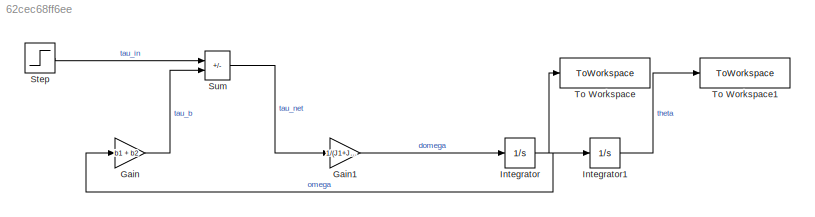
MODEL slx_62cec68ff6ee
KIND model
CONFIG AbsTol = auto
CONFIG EnableMultiTasking = off
CONFIG FixedStep = 1
CONFIG MaxStep = auto
CONFIG MinStep = auto
CONFIG RelTol = 1e-3
CONFIG SampleTimeConstraint = Unconstrained
CONFIG SolverName = ode45
CONFIG StartTime = 0.0
CONFIG StopTime = 25
BLOCK [Gain] Gain
  Gain = b1 + b2
BLOCK [Gain] Gain1
  Gain = 1/(J1+J2)
BLOCK [Integrator] Integrator
  InitialCondition = omega0
BLOCK [Integrator] Integrator1
  InitialCondition = theta0
BLOCK [Step] Step
  After = A
  SampleTime = 0
  Time = 0
BLOCK [Sum] Sum
  IconShape = rectangular
  Inputs = +-
BLOCK [ToWorkspace] To Workspace
  FixptAsFi = on
  MaxDataPoints = inf
  SampleTime = -1
  SaveFormat = Timeseries
  VariableName = omega_out
BLOCK [ToWorkspace] To Workspace1
  FixptAsFi = on
  MaxDataPoints = inf
  SampleTime = -1
  SaveFormat = Timeseries
  VariableName = theta_out
LINE Gain1:1 -> Integrator:1
LINE Gain:1 -> Sum:2
LINE Integrator1:1 -> To Workspace1:1
NET Integrator:1 -> Gain:1, Integrator1:1, To Workspace:1
LINE Step:1 -> Sum:1
LINE Sum:1 -> Gain1:1
note: NET lines group one-source signal fan-out (src -> all destinations, sorted); 1:1 wires keep LINE
